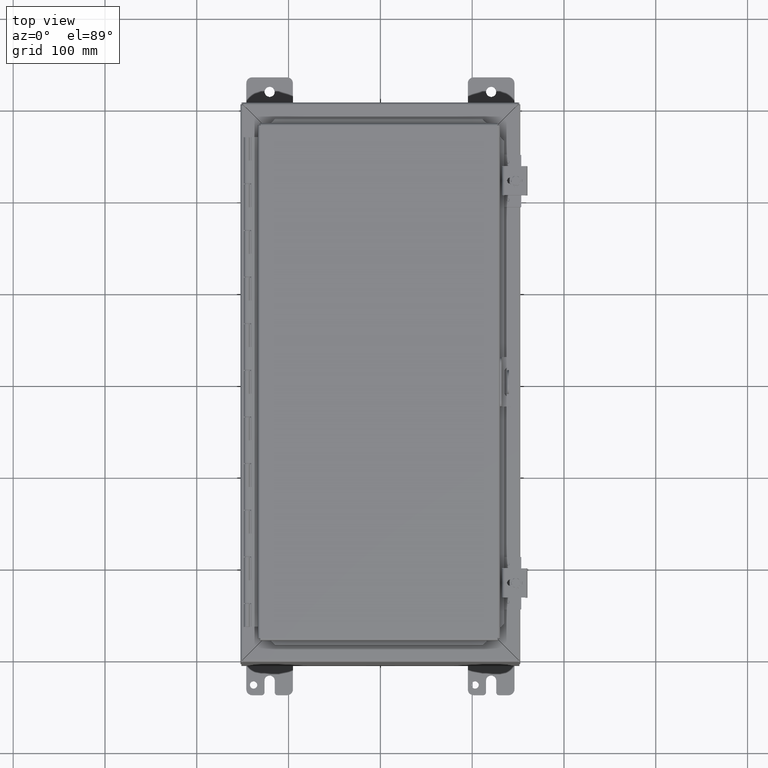
[diagram: clean part render]
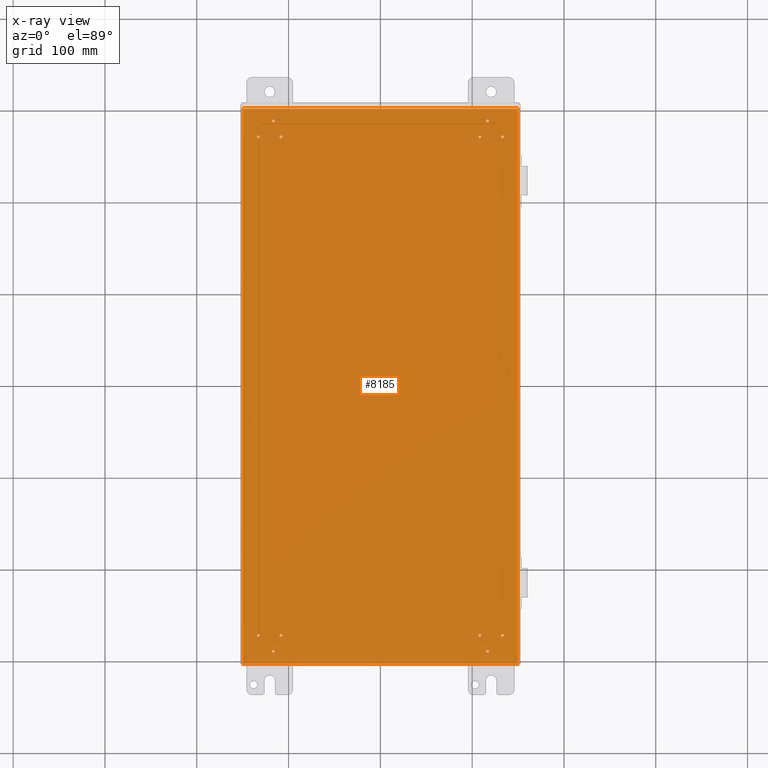
[diagram: x-ray — body ghosted, one internal face saturated and labeled with its STEP entity id]
A machine part, top view, then the same camera in x-ray: the body is ghosted and one INTERNAL B-rep face — a face not visible from any outside direction — is saturated and labeled: STEP entity #8185.
In plain terms, the highlighted planar face has unit normal (0, 0, 1).
Its self-contained STEP definition (entity closure, byte-faithful):
#1709=CARTESIAN_POINT('',(5.174375299999983,-10.689998991866467,0.074));
#1710=VERTEX_POINT('',#1709);
#1711=CARTESIAN_POINT('',(5.234375299999983,-10.689998991866467,0.074));
#1712=DIRECTION('',(0.0,0.0,-1.0));
#1713=DIRECTION('',(1.0,0.0,0.0));
#1714=AXIS2_PLACEMENT_3D('',#1711,#1712,#1713);
#1715=CIRCLE('',#1714,0.06);
#1716=EDGE_CURVE('',#1710,#1710,#1715,.T.);
#1783=CARTESIAN_POINT('',(4.205625299999985,-10.689998991866467,0.074));
#1784=VERTEX_POINT('',#1783);
#1785=CARTESIAN_POINT('',(4.265625299999986,-10.689998991866467,0.074));
#1786=DIRECTION('',(0.0,0.0,-1.0));
#1787=DIRECTION('',(1.0,0.0,0.0));
#1788=AXIS2_PLACEMENT_3D('',#1785,#1786,#1787);
#1789=CIRCLE('',#1788,0.06);
#1790=EDGE_CURVE('',#1784,#1784,#1789,.T.);
#1857=CARTESIAN_POINT('',(4.531250299997257,-11.375498991872275,0.074));
#1858=VERTEX_POINT('',#1857);
#1859=CARTESIAN_POINT('',(4.591250299997257,-11.375498991872275,0.074));
#1860=DIRECTION('',(0.0,0.0,-1.0));
#1861=DIRECTION('',(1.0,0.0,0.0));
#1862=AXIS2_PLACEMENT_3D('',#1859,#1860,#1861);
#1863=CIRCLE('',#1862,0.06);
#1864=EDGE_CURVE('',#1858,#1858,#1863,.T.);
#1931=CARTESIAN_POINT('',(-4.325625299999989,-10.689998991866464,0.074));
#1932=VERTEX_POINT('',#1931);
#1933=CARTESIAN_POINT('',(-4.265625299999988,-10.689998991866464,0.074));
#1934=DIRECTION('',(0.0,0.0,-1.0));
#1935=DIRECTION('',(1.0,0.0,0.0));
#1936=AXIS2_PLACEMENT_3D('',#1933,#1934,#1935);
#1937=CIRCLE('',#1936,0.06);
#1938=EDGE_CURVE('',#1932,#1932,#1937,.T.);
#2005=CARTESIAN_POINT('',(-4.65125029999726,-11.375498991872274,0.074));
#2006=VERTEX_POINT('',#2005);
#2007=CARTESIAN_POINT('',(-4.59125029999726,-11.375498991872274,0.074));
#2008=DIRECTION('',(0.0,0.0,-1.0));
#2009=DIRECTION('',(1.0,0.0,0.0));
#2010=AXIS2_PLACEMENT_3D('',#2007,#2008,#2009);
#2011=CIRCLE('',#2010,0.06);
#2012=EDGE_CURVE('',#2006,#2006,#2011,.T.);
#2079=CARTESIAN_POINT('',(-5.294375299999986,-10.689998991866464,0.074));
#2080=VERTEX_POINT('',#2079);
#2081=CARTESIAN_POINT('',(-5.234375299999986,-10.689998991866464,0.074));
#2082=DIRECTION('',(0.0,0.0,-1.0));
#2083=DIRECTION('',(1.0,0.0,0.0));
#2084=AXIS2_PLACEMENT_3D('',#2081,#2082,#2083);
#2085=CIRCLE('',#2084,0.06);
#2086=EDGE_CURVE('',#2080,#2080,#2085,.T.);
#2153=CARTESIAN_POINT('',(-4.651250299997262,11.375498991872274,0.074));
#2154=VERTEX_POINT('',#2153);
#2155=CARTESIAN_POINT('',(-4.591250299997261,11.375498991872274,0.074));
#2156=DIRECTION('',(0.0,0.0,-1.0));
#2157=DIRECTION('',(1.0,0.0,0.0));
#2158=AXIS2_PLACEMENT_3D('',#2155,#2156,#2157);
#2159=CIRCLE('',#2158,0.06);
#2160=EDGE_CURVE('',#2154,#2154,#2159,.T.);
#2227=CARTESIAN_POINT('',(-5.294375299999987,10.689998991866464,0.074));
#2228=VERTEX_POINT('',#2227);
#2229=CARTESIAN_POINT('',(-5.234375299999988,10.689998991866464,0.074));
#2230=DIRECTION('',(0.0,0.0,-1.0));
#2231=DIRECTION('',(1.0,0.0,0.0));
#2232=AXIS2_PLACEMENT_3D('',#2229,#2230,#2231);
#2233=CIRCLE('',#2232,0.06);
#2234=EDGE_CURVE('',#2228,#2228,#2233,.T.);
#2301=CARTESIAN_POINT('',(-4.32562529999999,10.689998991866464,0.074));
#2302=VERTEX_POINT('',#2301);
#2303=CARTESIAN_POINT('',(-4.26562529999999,10.689998991866464,0.074));
#2304=DIRECTION('',(0.0,0.0,-1.0));
#2305=DIRECTION('',(1.0,0.0,0.0));
#2306=AXIS2_PLACEMENT_3D('',#2303,#2304,#2305);
#2307=CIRCLE('',#2306,0.06);
#2308=EDGE_CURVE('',#2302,#2302,#2307,.T.);
#2375=CARTESIAN_POINT('',(4.205625299999995,10.68999899186646,0.074));
#2376=VERTEX_POINT('',#2375);
#2377=CARTESIAN_POINT('',(4.265625299999996,10.68999899186646,0.074));
#2378=DIRECTION('',(0.0,0.0,-1.0));
#2379=DIRECTION('',(1.0,0.0,0.0));
#2380=AXIS2_PLACEMENT_3D('',#2377,#2378,#2379);
#2381=CIRCLE('',#2380,0.06);
#2382=EDGE_CURVE('',#2376,#2376,#2381,.T.);
#2449=CARTESIAN_POINT('',(4.531250299997267,11.37549899187227,0.074));
#2450=VERTEX_POINT('',#2449);
#2451=CARTESIAN_POINT('',(4.591250299997267,11.37549899187227,0.074));
#2452=DIRECTION('',(0.0,0.0,-1.0));
#2453=DIRECTION('',(1.0,0.0,0.0));
#2454=AXIS2_PLACEMENT_3D('',#2451,#2452,#2453);
#2455=CIRCLE('',#2454,0.06);
#2456=EDGE_CURVE('',#2450,#2450,#2455,.T.);
#2523=CARTESIAN_POINT('',(5.174375299999992,10.68999899186646,0.074));
#2524=VERTEX_POINT('',#2523);
#2525=CARTESIAN_POINT('',(5.234375299999993,10.68999899186646,0.074));
#2526=DIRECTION('',(0.0,0.0,-1.0));
#2527=DIRECTION('',(1.0,0.0,0.0));
#2528=AXIS2_PLACEMENT_3D('',#2525,#2526,#2527);
#2529=CIRCLE('',#2528,0.06);
#2530=EDGE_CURVE('',#2524,#2524,#2529,.T.);
#6749=CARTESIAN_POINT('',(5.894749999999999,11.882766839324361,0.073999999999999));
#6750=VERTEX_POINT('',#6749);
#6760=CARTESIAN_POINT('',(5.894749999999999,-11.88276683932436,0.074));
#6761=VERTEX_POINT('',#6760);
#6762=CARTESIAN_POINT('',(5.894749999999999,-11.88276683932436,0.074));
#6763=DIRECTION('',(0.0,1.0,0.0));
#6764=VECTOR('',#6763,23.765533678648723);
#6765=LINE('',#6762,#6764);
#6766=EDGE_CURVE('',#6761,#6750,#6765,.T.);
#7078=CARTESIAN_POINT('',(-5.894749999999998,-11.882766839324363,0.073999999999999));
#7079=VERTEX_POINT('',#7078);
#7089=CARTESIAN_POINT('',(-5.894750000000002,11.882766839324367,0.074));
#7090=VERTEX_POINT('',#7089);
#7091=CARTESIAN_POINT('',(-5.894750000000002,11.882766839324367,0.074));
#7092=DIRECTION('',(0.0,-1.0,0.0));
#7093=VECTOR('',#7092,23.76553367864873);
#7094=LINE('',#7091,#7093);
#7095=EDGE_CURVE('',#7090,#7079,#7094,.T.);
#7359=CARTESIAN_POINT('',(5.882766839324359,-11.894750000000002,0.074));
#7360=VERTEX_POINT('',#7359);
#7370=CARTESIAN_POINT('',(-5.88276683932436,-11.894750000000002,0.074));
#7371=VERTEX_POINT('',#7370);
#7372=CARTESIAN_POINT('',(-5.882766839324358,-11.894750000000002,0.074));
#7373=DIRECTION('',(1.0,0.0,0.0));
#7374=VECTOR('',#7373,11.765533678648715);
#7375=LINE('',#7372,#7374);
#7376=EDGE_CURVE('',#7371,#7360,#7375,.T.);
#7736=CARTESIAN_POINT('',(-5.88276683932437,11.894749999999998,0.074));
#7737=VERTEX_POINT('',#7736);
#7747=CARTESIAN_POINT('',(5.882766839324362,11.894749999999998,0.074));
#7748=VERTEX_POINT('',#7747);
#7749=CARTESIAN_POINT('',(5.882766839324363,11.894749999999998,0.074));
#7750=DIRECTION('',(-1.0,0.0,0.0));
#7751=VECTOR('',#7750,11.765533678648733);
#7752=LINE('',#7749,#7751);
#7753=EDGE_CURVE('',#7748,#7737,#7752,.T.);
#8022=CARTESIAN_POINT('',(-5.937891921115424,11.937891921115424,0.074));
#8023=DIRECTION('',(0.0,0.0,-1.0));
#8024=DIRECTION('',(1.0,0.0,0.0));
#8025=AXIS2_PLACEMENT_3D('',#8022,#8023,#8024);
#8026=CIRCLE('',#8025,0.07);
#8027=EDGE_CURVE('',#7737,#7090,#8026,.T.);
#8109=CARTESIAN_POINT('',(5.937891921115418,11.937891921115421,0.074));
#8110=DIRECTION('',(0.0,0.0,-1.0));
#8111=DIRECTION('',(1.0,0.0,0.0));
#8112=AXIS2_PLACEMENT_3D('',#8109,#8110,#8111);
#8113=CIRCLE('',#8112,0.07);
#8114=EDGE_CURVE('',#6750,#7748,#8113,.T.);
#8122=CARTESIAN_POINT('',(-6.993531E-016,6.993531E-016,0.074));
#8123=DIRECTION('',(0.0,0.0,1.0));
#8124=DIRECTION('',(1.0,0.0,0.0));
#8125=AXIS2_PLACEMENT_3D('',#8122,#8123,#8124);
#8126=PLANE('',#8125);
#8127=ORIENTED_EDGE('',*,*,#7753,.T.);
#8128=ORIENTED_EDGE('',*,*,#8027,.T.);
#8129=ORIENTED_EDGE('',*,*,#7095,.T.);
#8130=CARTESIAN_POINT('',(-5.937891921115416,-11.937891921115423,0.074));
#8131=DIRECTION('',(0.0,0.0,-1.0));
#8132=DIRECTION('',(1.0,0.0,0.0));
#8133=AXIS2_PLACEMENT_3D('',#8130,#8131,#8132);
#8134=CIRCLE('',#8133,0.07);
#8135=EDGE_CURVE('',#7079,#7371,#8134,.T.);
#8136=ORIENTED_EDGE('',*,*,#8135,.T.);
#8137=ORIENTED_EDGE('',*,*,#7376,.T.);
#8138=CARTESIAN_POINT('',(5.937891921115418,-11.937891921115419,0.074));
#8139=DIRECTION('',(0.0,0.0,-1.0));
#8140=DIRECTION('',(1.0,0.0,0.0));
#8141=AXIS2_PLACEMENT_3D('',#8138,#8139,#8140);
#8142=CIRCLE('',#8141,0.07);
#8143=EDGE_CURVE('',#7360,#6761,#8142,.T.);
#8144=ORIENTED_EDGE('',*,*,#8143,.T.);
#8145=ORIENTED_EDGE('',*,*,#6766,.T.);
#8146=ORIENTED_EDGE('',*,*,#8114,.T.);
#8147=EDGE_LOOP('',(#8127,#8128,#8129,#8136,#8137,#8144,#8145,#8146));
#8148=FACE_OUTER_BOUND('',#8147,.T.);
#8149=ORIENTED_EDGE('',*,*,#1716,.T.);
#8150=EDGE_LOOP('',(#8149));
#8151=FACE_BOUND('',#8150,.T.);
#8152=ORIENTED_EDGE('',*,*,#1790,.T.);
#8153=EDGE_LOOP('',(#8152));
#8154=FACE_BOUND('',#8153,.T.);
#8155=ORIENTED_EDGE('',*,*,#1864,.T.);
#8156=EDGE_LOOP('',(#8155));
#8157=FACE_BOUND('',#8156,.T.);
#8158=ORIENTED_EDGE('',*,*,#1938,.T.);
#8159=EDGE_LOOP('',(#8158));
#8160=FACE_BOUND('',#8159,.T.);
#8161=ORIENTED_EDGE('',*,*,#2012,.T.);
#8162=EDGE_LOOP('',(#8161));
#8163=FACE_BOUND('',#8162,.T.);
#8164=ORIENTED_EDGE('',*,*,#2086,.T.);
#8165=EDGE_LOOP('',(#8164));
#8166=FACE_BOUND('',#8165,.T.);
#8167=ORIENTED_EDGE('',*,*,#2160,.T.);
#8168=EDGE_LOOP('',(#8167));
#8169=FACE_BOUND('',#8168,.T.);
#8170=ORIENTED_EDGE('',*,*,#2234,.T.);
#8171=EDGE_LOOP('',(#8170));
#8172=FACE_BOUND('',#8171,.T.);
#8173=ORIENTED_EDGE('',*,*,#2308,.T.);
#8174=EDGE_LOOP('',(#8173));
#8175=FACE_BOUND('',#8174,.T.);
#8176=ORIENTED_EDGE('',*,*,#2382,.T.);
#8177=EDGE_LOOP('',(#8176));
#8178=FACE_BOUND('',#8177,.T.);
#8179=ORIENTED_EDGE('',*,*,#2456,.T.);
#8180=EDGE_LOOP('',(#8179));
#8181=FACE_BOUND('',#8180,.T.);
#8182=ORIENTED_EDGE('',*,*,#2530,.T.);
#8183=EDGE_LOOP('',(#8182));
#8184=FACE_BOUND('',#8183,.T.);
#8185=ADVANCED_FACE('',(#8148,#8151,#8154,#8157,#8160,#8163,#8166,#8169,#8172,#8175,#8178,#8181,#8184),#8126,.T.);